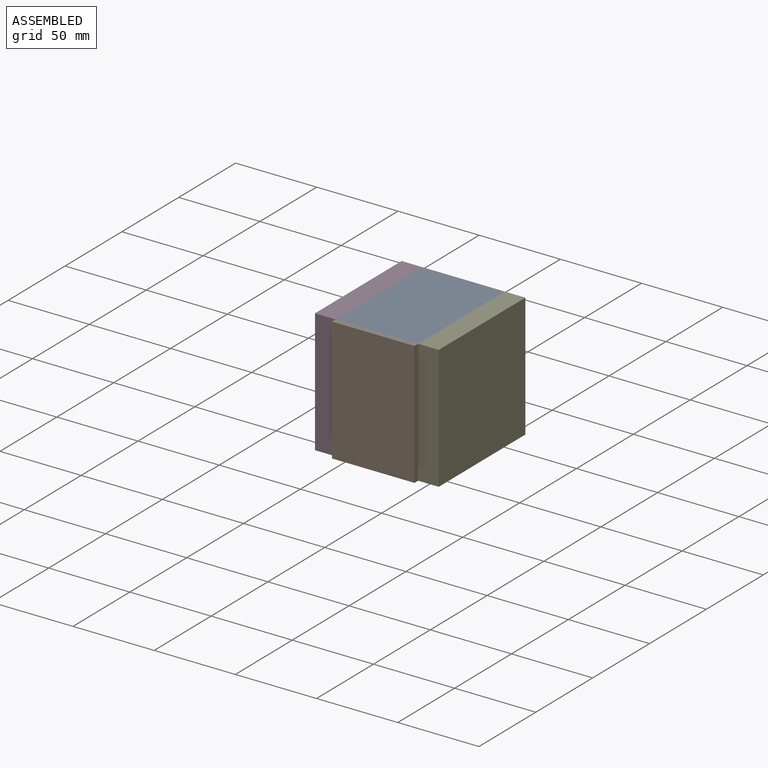
[diagram: assembled view]
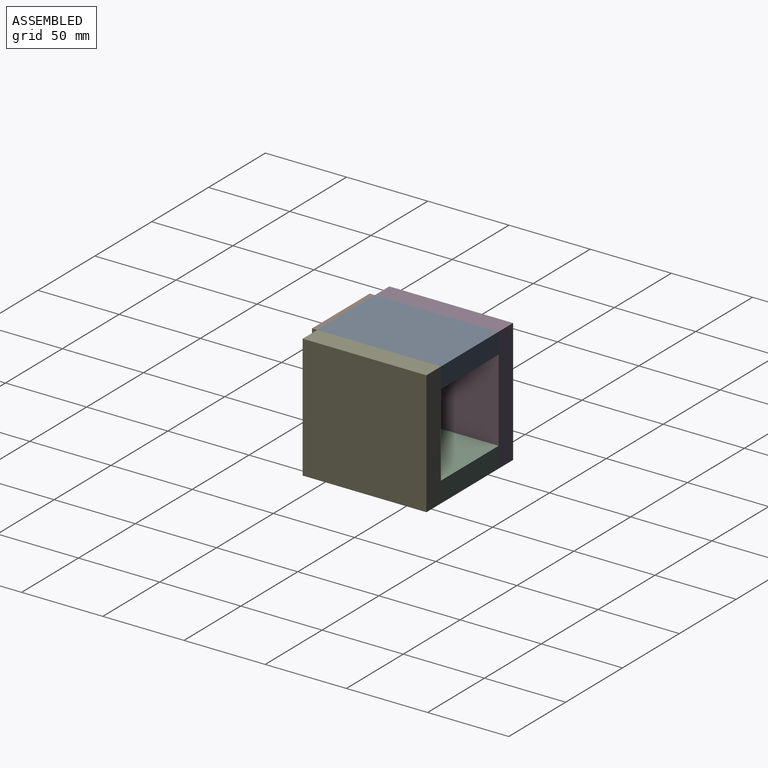
[diagram: assembled view, second angle]
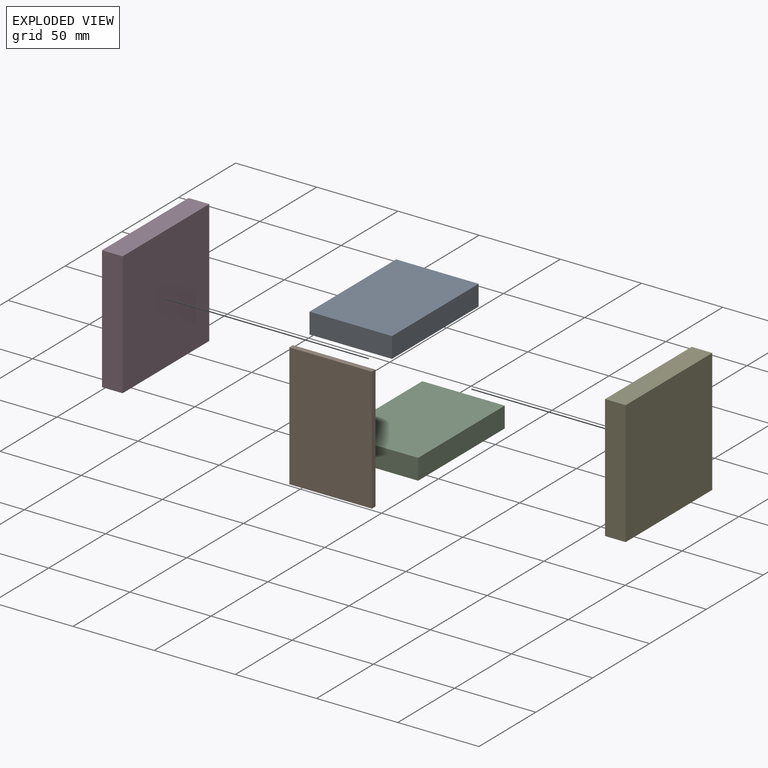
[diagram: exploded view]
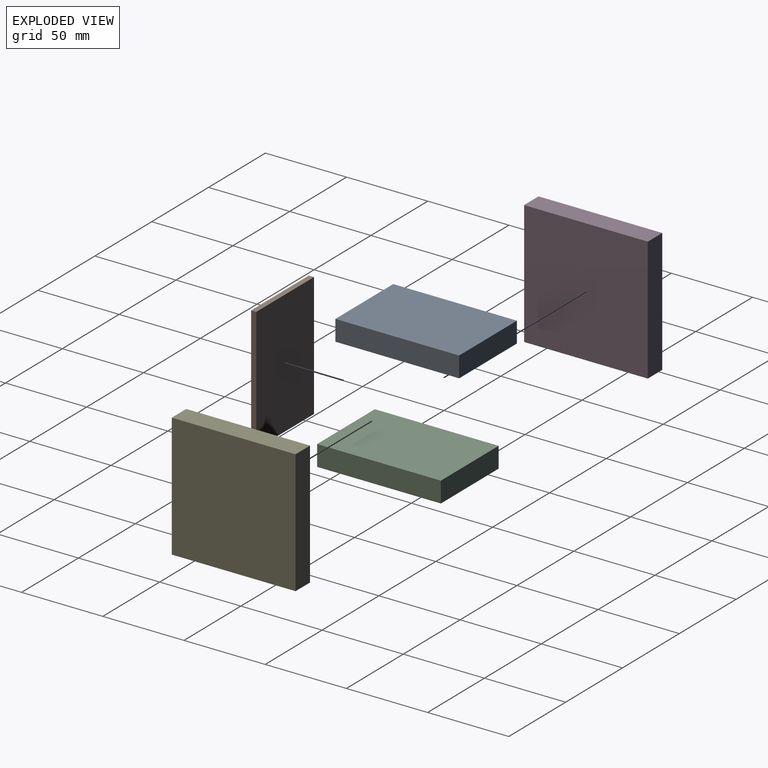
[diagram: exploded view, second angle]
ASSEMBLY  parts=5 mates=4
PART A: 6 faces, bbox 50.8x76.2x12.7 mm
  f0: plane 50.8x12.7mm, normal (0,1,0), area 645.2mm2, adj f1,f3,f4,f5
  f1: plane 76.2x12.7mm, normal (-1,0,0), area 967.7mm2, adj f0,f2,f4,f5
  f2: plane 50.8x12.7mm, normal (0,-1,0), area 645.2mm2, adj f1,f3,f4,f5
  f3: plane 76.2x12.7mm, normal (1,0,0), area 967.7mm2, adj f0,f2,f4,f5
  f4: plane 76.2x50.8mm, normal (0,0,1), area 3871mm2, adj f0,f1,f2,f3
  f5: plane 76.2x50.8mm, normal (0,0,-1), area 3871mm2, adj f0,f1,f2,f3
PART B: 6 faces, bbox 76.2x3.2x50.8 mm
  f0: plane 76.2x3.18mm, normal (0,0,1), area 241.9mm2, adj f1,f3,f4,f5
  f1: plane 50.8x3.18mm, normal (-1,0,0), area 161.3mm2, adj f0,f2,f4,f5
  f2: plane 76.2x3.18mm, normal (0,0,-1), area 241.9mm2, adj f1,f3,f4,f5
  f3: plane 50.8x3.18mm, normal (1,0,0), area 161.3mm2, adj f0,f2,f4,f5
  f4: plane 76.2x50.8mm, normal (0,-1,0), area 3871mm2, adj f0,f1,f2,f3
  f5: plane 76.2x50.8mm, normal (0,1,0), area 3871mm2, adj f0,f1,f2,f3
PART C: same geometry as A
PART D: 6 faces, bbox 12.7x76.2x76.2 mm
  f0: plane 76.2x12.7mm, normal (0,0,1), area 967.7mm2, adj f1,f3,f4,f5
  f1: plane 76.2x12.7mm, normal (0,-1,0), area 967.7mm2, adj f0,f2,f4,f5
  f2: plane 76.2x12.7mm, normal (0,0,-1), area 967.7mm2, adj f1,f3,f4,f5
  f3: plane 76.2x12.7mm, normal (0,1,0), area 967.7mm2, adj f0,f2,f4,f5
  f4: plane 76.2x76.2mm, normal (1,0,0), area 5806.4mm2, adj f0,f1,f2,f3
  f5: plane 76.2x76.2mm, normal (-1,0,0), area 5806.4mm2, adj f0,f1,f2,f3
PART E: same geometry as D
PLACE A t=(7.29,39.53,-27.99)mm
PLACE B rot(axis=(0,1,0),90deg) t=(19.99,-11.27,-40.69)mm
PLACE C t=(7.29,39.53,-91.49)mm
PLACE D t=(-18.11,14.13,-40.69)mm
PLACE E t=(45.39,14.13,-40.69)mm
MATE fastened B.f5 <-> C.f2  axis (0,1,0) through (19.99,-11.27,-91.49)mm
MATE fastened A.f3 <-> E.f5  axis (1,0,0) through (45.39,26.83,-15.29)mm
MATE fastened A.f1 <-> D.f4  axis (-1,0,0) through (-5.41,26.83,-15.29)mm
MATE fastened C.f3 <-> E.f5  axis (1,0,0) through (45.39,26.83,-91.49)mm
